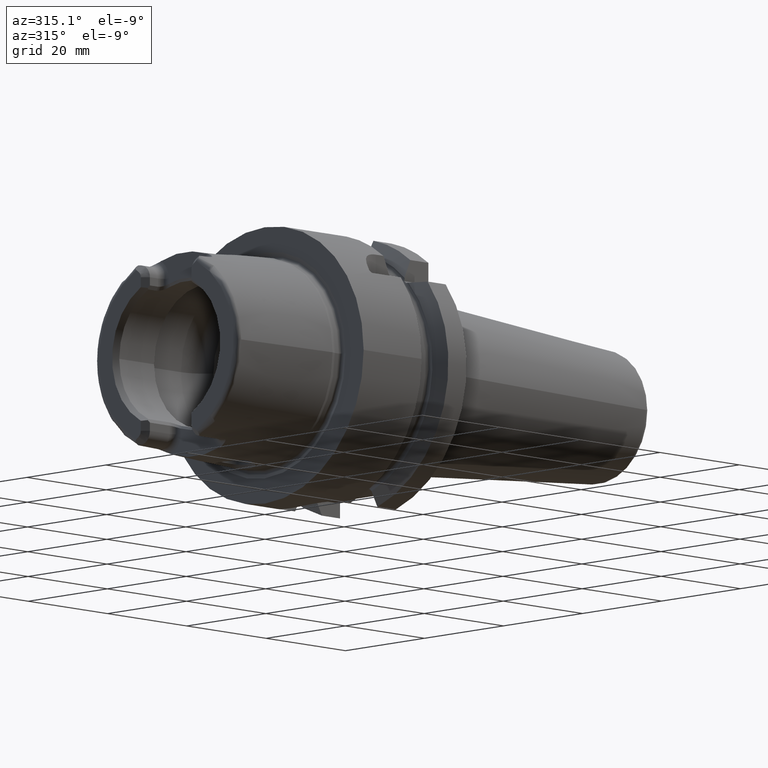
[diagram: clean part render]
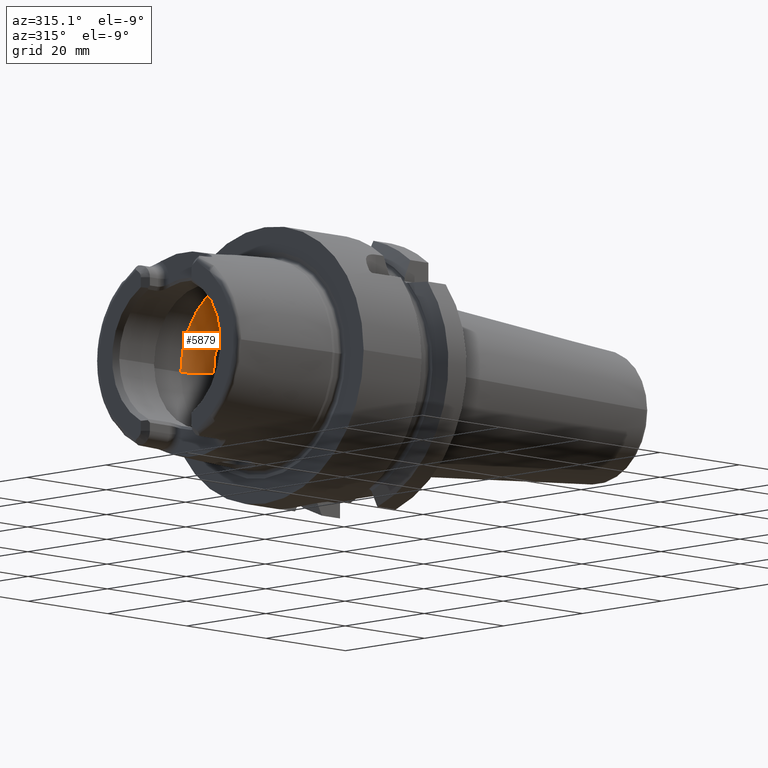
[diagram: same view with one face highlighted and labeled with its STEP entity id]
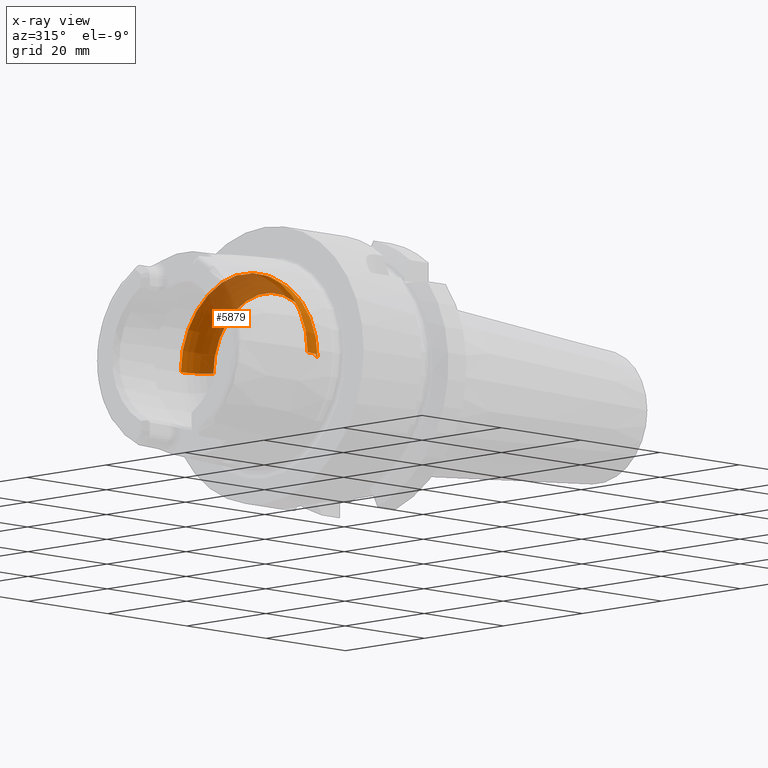
[diagram: x-ray of the same camera — body ghosted, the highlighted face saturated]
A machine part, auxiliary view. The second image highlights one B-rep face of the part: STEP entity #5879.
The next image is the same camera in x-ray: the body ghosted, the highlighted face saturated — about 40% of this face is hidden behind the body in this view.
In plain terms, the highlighted toroidal blend (fillet) surface has major radius 10.04 mm and minor (blend) radius 6 mm.
Its self-contained STEP definition (entity closure, byte-faithful):
#2150=CARTESIAN_POINT('',(-4.5E0,0.E0,1.599819131363E1));
#2151=CARTESIAN_POINT('',(-4.5E0,1.393933285662E-1,1.599819131363E1));
#2152=CARTESIAN_POINT('',(-4.519404191081E0,4.194544956419E-1,
1.599688659151E1));
#2153=CARTESIAN_POINT('',(-4.608514252748E0,8.368427430076E-1,
1.599033330284E1));
#2154=CARTESIAN_POINT('',(-4.756111350291E0,1.237284710770E0,1.597758887261E1));
#2155=CARTESIAN_POINT('',(-4.955426617124E0,1.607186531253E0,1.595666056940E1));
#2156=CARTESIAN_POINT('',(-5.118862175482E0,1.829998924173E0,1.593561410958E1));
#2157=CARTESIAN_POINT('',(-5.207075858867E0,1.934553923521E0,1.592291120106E1));
#2159=CARTESIAN_POINT('',(-5.207075858867E0,-1.934553923521E0,
1.592291120106E1));
#2160=CARTESIAN_POINT('',(-5.118900024865E0,-1.830043785039E0,
1.593560865920E1));
#2161=CARTESIAN_POINT('',(-4.955463769315E0,-1.607278697505E0,
1.595665773659E1));
#2162=CARTESIAN_POINT('',(-4.755897029316E0,-1.236851245102E0,
1.597761021240E1));
#2163=CARTESIAN_POINT('',(-4.608377605542E0,-8.363601809663E-1,
1.599034363703E1));
#2164=CARTESIAN_POINT('',(-4.519347393058E0,-4.189919635640E-1,
1.599689053867E1));
#2165=CARTESIAN_POINT('',(-4.5E0,-1.392080742489E-1,1.599819131363E1));
#2166=CARTESIAN_POINT('',(-4.5E0,0.E0,1.599819131363E1));
#2168=CARTESIAN_POINT('',(0.E0,0.E0,0.E0));
#2169=DIRECTION('',(1.E0,0.E0,0.E0));
#2170=DIRECTION('',(0.E0,1.E0,0.E0));
#2171=AXIS2_PLACEMENT_3D('',#2168,#2169,#2170);
#2192=CARTESIAN_POINT('',(-5.207075858867E0,0.E0,0.E0));
#2193=DIRECTION('',(1.E0,0.E0,0.E0));
#2194=DIRECTION('',(0.E0,1.E0,0.E0));
#2195=AXIS2_PLACEMENT_3D('',#2192,#2193,#2194);
#2197=CARTESIAN_POINT('',(-5.207075858867E0,0.E0,0.E0));
#2198=DIRECTION('',(1.E0,0.E0,0.E0));
#2199=DIRECTION('',(0.E0,-1.206080999702E-1,9.927001995676E-1));
#2200=AXIS2_PLACEMENT_3D('',#2197,#2198,#2199);
#2286=CARTESIAN_POINT('',(-5.207075858867E0,1.004E1,0.E0));
#2287=DIRECTION('',(0.E0,0.E0,1.E0));
#2288=DIRECTION('',(8.678459764779E-1,4.968333333333E-1,0.E0));
#2289=AXIS2_PLACEMENT_3D('',#2286,#2287,#2288);
#2296=CARTESIAN_POINT('',(-5.207075858867E0,-1.004E1,0.E0));
#2297=DIRECTION('',(0.E0,0.E0,-1.E0));
#2298=DIRECTION('',(8.678459764779E-1,-4.968333333333E-1,0.E0));
#2299=AXIS2_PLACEMENT_3D('',#2296,#2297,#2298);
#3094=CARTESIAN_POINT('',(-4.5E0,0.E0,1.599819131363E1));
#3095=VERTEX_POINT('',#3094);
#3116=CARTESIAN_POINT('',(0.E0,1.3021E1,0.E0));
#3117=VERTEX_POINT('',#3116);
#3118=CARTESIAN_POINT('',(-5.207075858867E0,1.604E1,0.E0));
#3119=VERTEX_POINT('',#3118);
#3128=CARTESIAN_POINT('',(0.E0,-1.3021E1,0.E0));
#3129=VERTEX_POINT('',#3128);
#3130=CARTESIAN_POINT('',(-5.207075858867E0,-1.604E1,0.E0));
#3131=VERTEX_POINT('',#3130);
#3148=VERTEX_POINT('',#2157);
#3149=VERTEX_POINT('',#2159);
#5860=CARTESIAN_POINT('',(-5.207075858867E0,0.E0,0.E0));
#5861=DIRECTION('',(1.E0,0.E0,0.E0));
#5862=DIRECTION('',(0.E0,-1.E0,0.E0));
#5863=AXIS2_PLACEMENT_3D('',#5860,#5861,#5862);
#5864=TOROIDAL_SURFACE('',#5863,1.004E1,6.E0);
#5865=ORIENTED_EDGE('',*,*,#5837,.F.);
#5866=ORIENTED_EDGE('',*,*,#5611,.F.);
#5868=ORIENTED_EDGE('',*,*,#5867,.T.);
#5870=ORIENTED_EDGE('',*,*,#5869,.F.);
#5872=ORIENTED_EDGE('',*,*,#5871,.F.);
#5874=ORIENTED_EDGE('',*,*,#5873,.T.);
#5876=ORIENTED_EDGE('',*,*,#5875,.T.);
#5877=EDGE_LOOP('',(#5865,#5866,#5868,#5870,#5872,#5874,#5876));
#5878=FACE_OUTER_BOUND('',#5877,.F.);
#5879=ADVANCED_FACE('',(#5878),#5864,.F.);
#2158=B_SPLINE_CURVE_WITH_KNOTS('',3,(#2150,#2151,#2152,#2153,#2154,#2155,#2156,
#2157),.UNSPECIFIED.,.F.,.F.,(4,1,1,1,1,4),(0.E0,2.E-1,4.E-1,6.E-1,8.E-1,1.E0),
.UNSPECIFIED.);
#2167=B_SPLINE_CURVE_WITH_KNOTS('',3,(#2159,#2160,#2161,#2162,#2163,#2164,#2165,
#2166),.UNSPECIFIED.,.F.,.F.,(4,1,1,1,1,4),(0.E0,2.E-1,4.E-1,6.E-1,8.E-1,1.E0),
.UNSPECIFIED.);
#2172=CIRCLE('',#2171,1.3021E1);
#2196=CIRCLE('',#2195,1.604E1);
#2201=CIRCLE('',#2200,1.604E1);
#2290=CIRCLE('',#2289,6.E0);
#2300=CIRCLE('',#2299,6.E0);
#5611=EDGE_CURVE('',#3149,#3095,#2167,.T.);
#5837=EDGE_CURVE('',#3095,#3148,#2158,.T.);
#5867=EDGE_CURVE('',#3149,#3131,#2201,.T.);
#5869=EDGE_CURVE('',#3129,#3131,#2300,.T.);
#5871=EDGE_CURVE('',#3117,#3129,#2172,.T.);
#5873=EDGE_CURVE('',#3117,#3119,#2290,.T.);
#5875=EDGE_CURVE('',#3119,#3148,#2196,.T.);